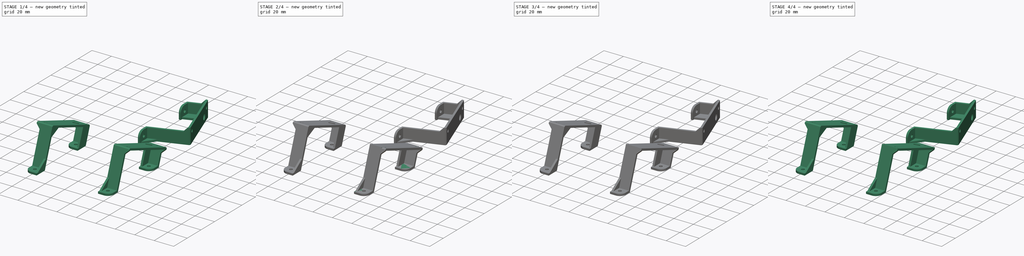
[diagram: build sequence overview — one tinted view per stage of 4, left to right]
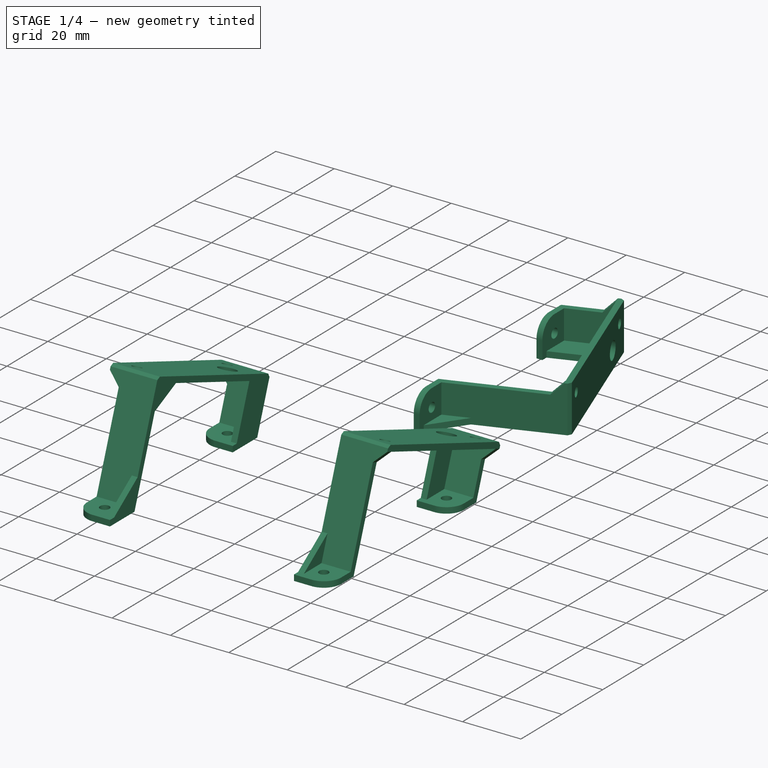
[diagram: stage 1 of 4 — iso view after this stage's code; geometry added in this stage tinted green]
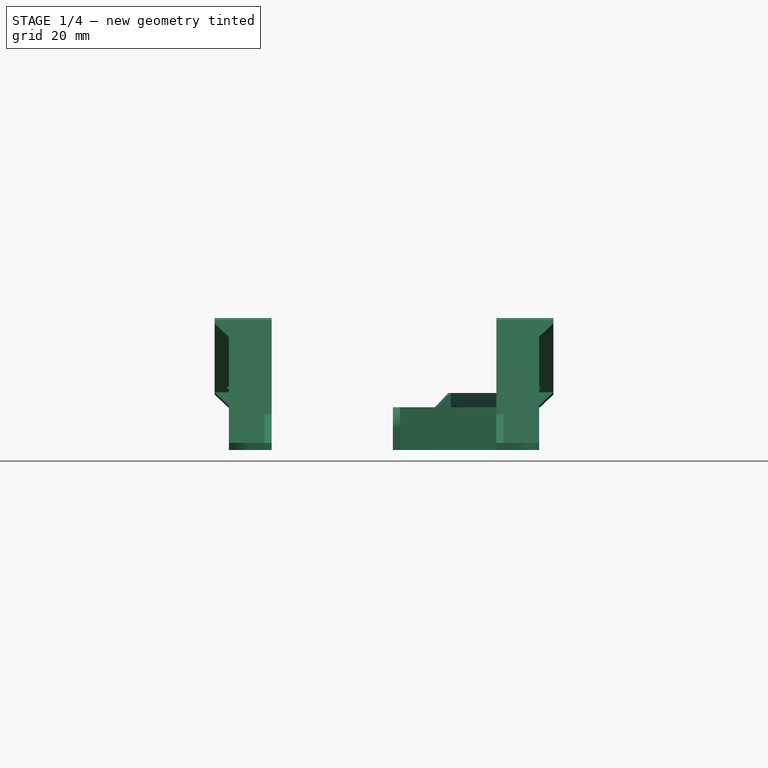
[diagram: stage 1 of 4 — front view after this stage's code; geometry added in this stage tinted green]
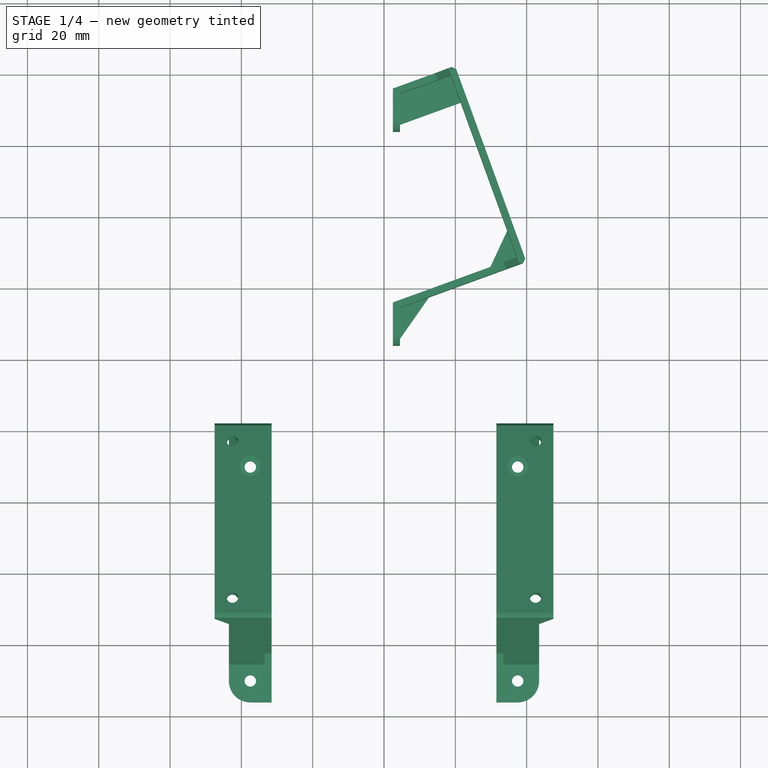
[diagram: stage 1 of 4 — top view after this stage's code; geometry added in this stage tinted green]
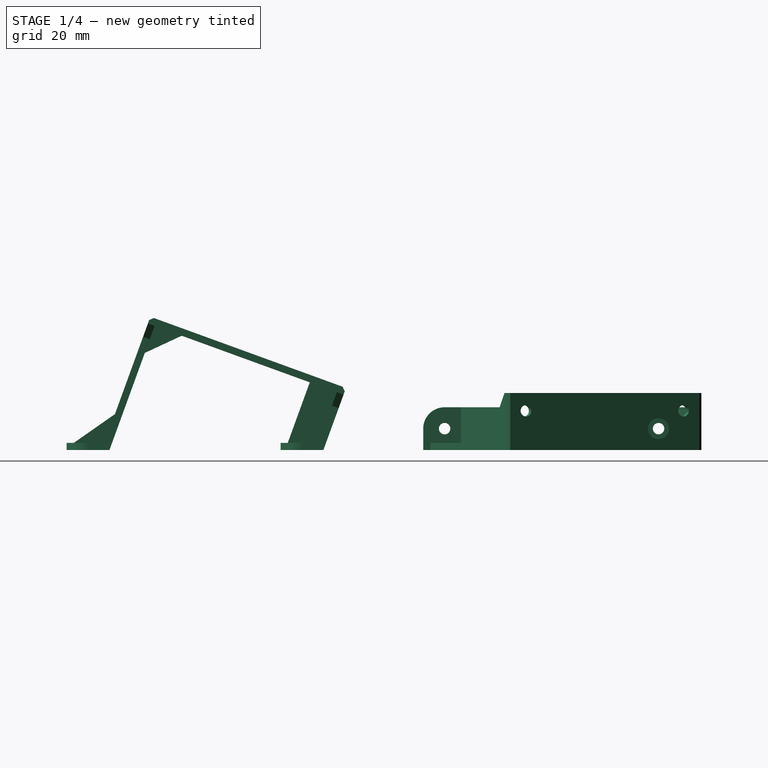
[diagram: stage 1 of 4 — right view after this stage's code; geometry added in this stage tinted green]
FCSTD DOCUMENT  (FreeCAD 0.14R3692 (Git))
Label: Bracket_Keypad
License: CC-BY 3.0
LicenseURL: http://creativecommons.org/licenses/by/3.0/
objects: Sketcher::SketchObject×8, PartDesign::Pad×5, PartDesign::Pocket×3, Part::Feature×3, Part::Mirroring×2, PartDesign::Fillet×1, PartDesign::Mirrored×1, Part::Chamfer×1
note: 32 computed .brp shape members not serialized (recipe doc carries the construction recipe); baked Part::Feature solids carry a one-line shape summary decoded from their .brp

FEATURE [Part::Feature] Pocket003
  shape: bbox 16 x 78.34 x 37.38 mm, 31 faces (baked)
FEATURE [Part::Chamfer] Chamfer
  Base = -> Pocket003
  Edges = 2 edges r=1: [Edge73,Edge95]
FEATURE [Part::Feature] Chamfer001  label="Bracket_Keypad-Left"
  shape: bbox 16 x 78 x 37.04 mm, 33 faces (baked)
FEATURE [Part::Mirroring] Part__Mirroring  label="Bracket_Keypad-Right"
  Base = (0,0,0)
  Normal = (1,0,0)
  Source = -> Chamfer001
FEATURE [Part::Feature] Chamfer001001  label="Bracket_Keypad-Left (for printing)"
  Placement = pos=(-2.5,100,-31.5) rot=(0,-1,0;1.5708rad)
  shape: bbox 37.04 x 78 x 16 mm, 33 faces (baked)
FEATURE [Part::Mirroring] Part__Mirroring001  label="Bracket_Keypad-Right (for printing)"
  Base = (0,0,0)
  Normal = (1,0,0)
  Source = -> Chamfer001001
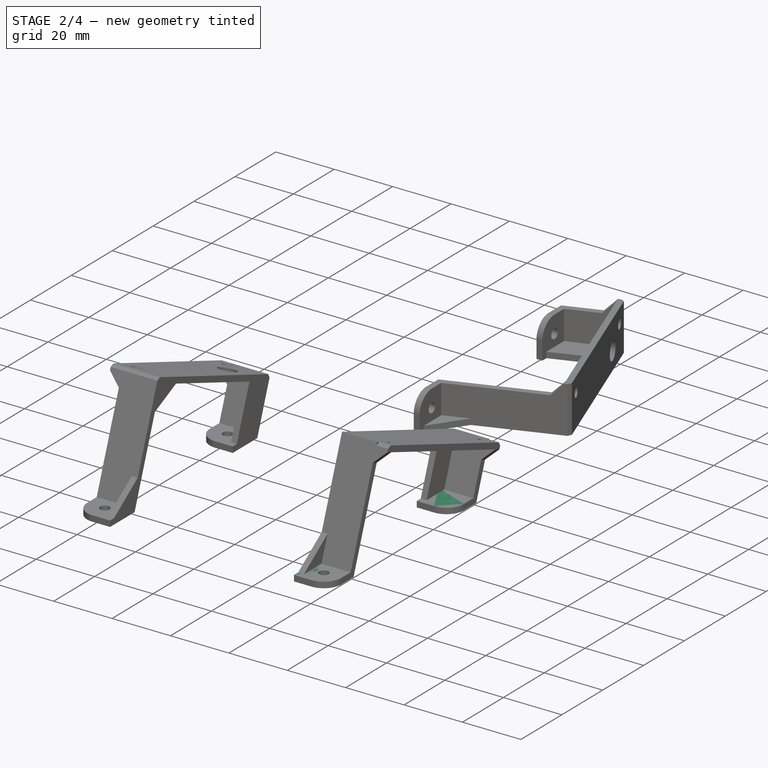
[diagram: stage 2 of 4 — iso view after this stage's code; geometry added in this stage tinted green]
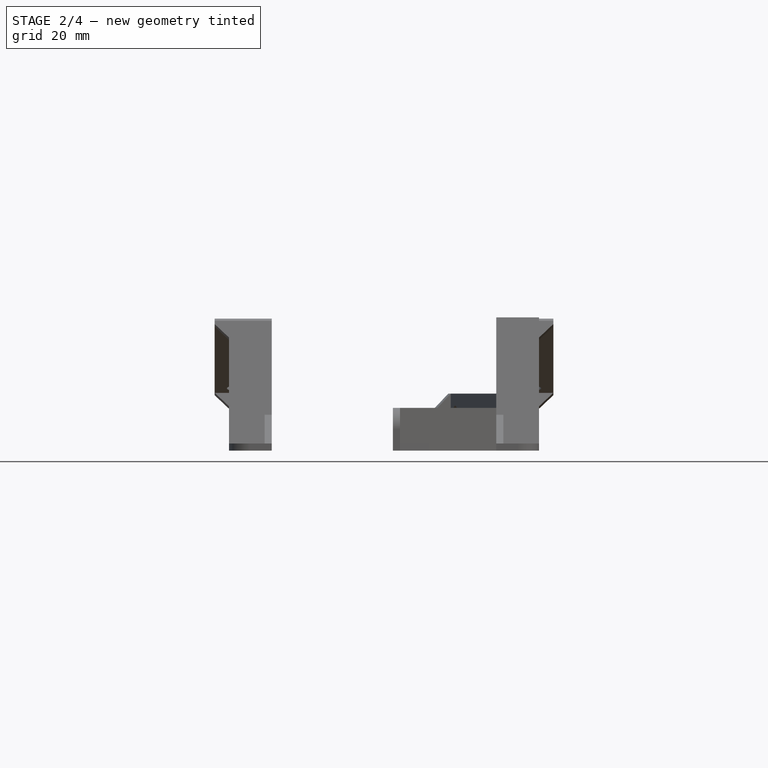
[diagram: stage 2 of 4 — front view after this stage's code; geometry added in this stage tinted green]
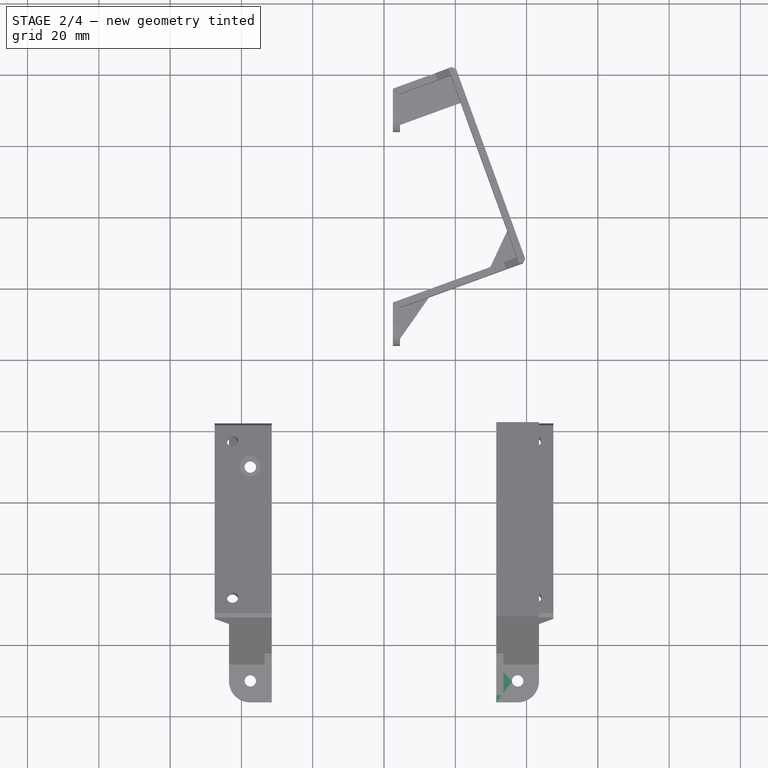
[diagram: stage 2 of 4 — top view after this stage's code; geometry added in this stage tinted green]
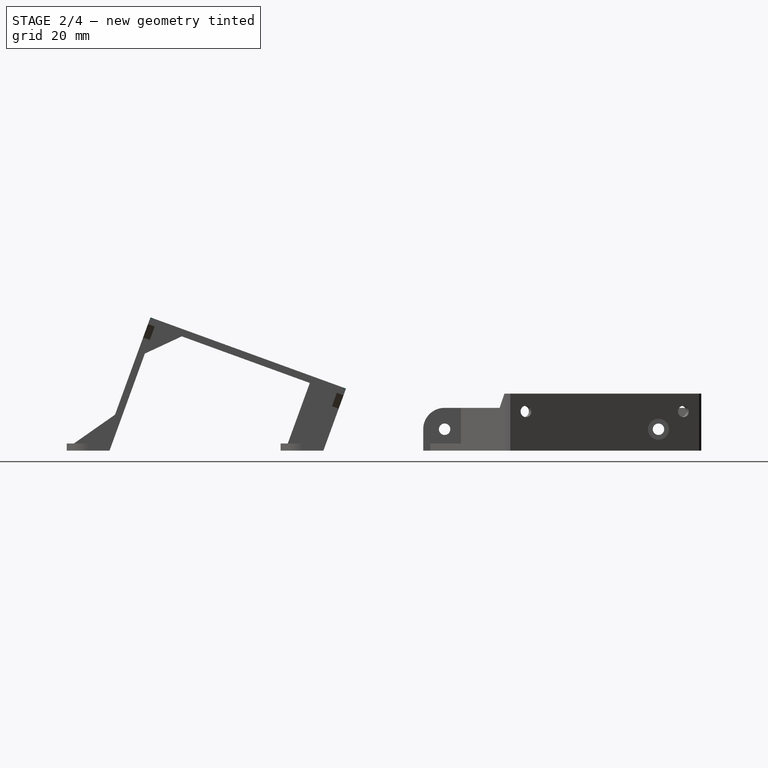
[diagram: stage 2 of 4 — right view after this stage's code; geometry added in this stage tinted green]
FEATURE [Sketcher::SketchObject] Sketch
  Placement = pos=(31.5,0,0) rot=(0.57735,0.57735,0.57735;2.0944rad)
  sketch-geometry (14):
    g0: Circle [constr] CenterX=0 CenterY=-14 CenterZ=0 NormalX=0 NormalY=0 NormalZ=1 Radius=42
    g1: LineSegment StartX=-11.3272 StartY=34.8182 StartZ=0 EndX=39.7747 EndY=16.2186 EndZ=0
    g2: GeomPoint [constr] X=14.3648 Y=25.4671 Z=0
    g3: LineSegment StartX=39.7747 StartY=16.2186 StartZ=0 EndX=34.5996 EndY=2 EndZ=0
    g4: LineSegment StartX=-11.3272 StartY=34.8182 StartZ=0 EndX=-24 EndY=0 EndZ=0
    g5: LineSegment StartX=-24 StartY=0 StartZ=0 EndX=-36 EndY=0 EndZ=0
    g6: LineSegment StartX=-36 StartY=0 StartZ=0 EndX=-36 EndY=2 EndZ=0
    g7: LineSegment StartX=-36 StartY=2 StartZ=0 EndX=-25.4004 EndY=2 EndZ=0
    g8: LineSegment StartX=-25.4004 StartY=2 StartZ=0 EndX=-12.5225 EndY=37.3817 EndZ=0
    g9: LineSegment StartX=-12.5225 StartY=37.3817 StartZ=0 EndX=42.3382 EndY=17.414 EndZ=0
    g10: LineSegment StartX=42.3382 StartY=17.414 StartZ=0 EndX=36 EndY=0 EndZ=0
    g11: LineSegment StartX=36 StartY=0 StartZ=0 EndX=24 EndY=0 EndZ=0
    g12: LineSegment StartX=24 StartY=0 StartZ=0 EndX=24 EndY=2 EndZ=0
    g13: LineSegment StartX=24 StartY=2 StartZ=0 EndX=34.5996 EndY=2 EndZ=0
  constraints (41):
    c: Radius(g0) = 42
    c: PointOnObject(g0,g-2)
    c: PointOnObject(g2,g0)
    c: PointOnObject(g2,g1)
    c: DistanceX(g-1,g4) = -24
    c: Angle(g4) = -1.91986
    c: Coincident(g1,g4)
    c: Coincident(g1,g3)
    c: Coincident(g5,g6)
    c: Coincident(g6,g7)
    c: Coincident(g7,g8)
    c: Coincident(g8,g9)
    c: Coincident(g9,g10)
    c: Coincident(g10,g11)
    c: Coincident(g11,g12)
    c: Coincident(g12,g13)
    c: Horizontal(g5)
    c: Horizontal(g7)
    c: Horizontal(g13)
    c: Horizontal(g11)
    c: Vertical(g6)
    c: Vertical(g12)
    c: Coincident(g5,g4)
    c: Coincident(g13,g3)
    c: Parallel(g3,g10)
    c: Parallel(g4,g8)
    c: Parallel(g9,g1)
    c: DistanceY(g6) = 2
    c: DistanceX(g5) = -12
    c: Equal(g5,g11)
    c: Equal(g6,g12)
    c: Distance(g1,g9) = 2
    c: Distance(g1,g8) = 2
    c: DistanceX(g-1,g11) = 24
    c: DistanceY(g-1,g0) = -14
    c: PointOnObject(g4,g-1)
    c: PointOnObject(g10,g-1)
    c: Distance(g1,g10) = 2
    c: Parallel(g3,g4)
    c: Perpendicular(g1,g4)
    c: Tangent(g0,g1)
FEATURE [PartDesign::Pad] Pad
  Length = 12
  Length2 = 100
  Placement = pos=(31.5,0,0) rot=(0.57735,0.57735,0.57735;2.0944rad)
  Sketch = -> Sketch
  Type = 0
FEATURE [PartDesign::Fillet] Fillet
  Base = -> Pad [Edge31,Edge13]
  Placement = pos=(31.5,0,0) rot=(0.57735,0.57735,0.57735;2.0944rad)
  Radius = 6
FEATURE [Sketcher::SketchObject] Sketch001
  Placement = pos=(31.5,0,2) rot=(0,0,-1;1.5708rad)
  Support = -> Fillet [Face12]
  sketch-geometry (1):
    g0: Circle CenterX=30 CenterY=6 CenterZ=0 NormalX=0 NormalY=0 NormalZ=1 Radius=1.6
  constraints (3):
    c: Radius(g0) = 1.6
    c: DistanceX(g-1,g0) = 30
    c: DistanceY(g-1,g0) = 6
FEATURE [PartDesign::Pocket] Pocket
  Length = 2
  Placement = pos=(31.5,0,0) rot=(0.57735,0.57735,0.57735;2.0944rad)
  Sketch = -> Sketch001
  Type = 0
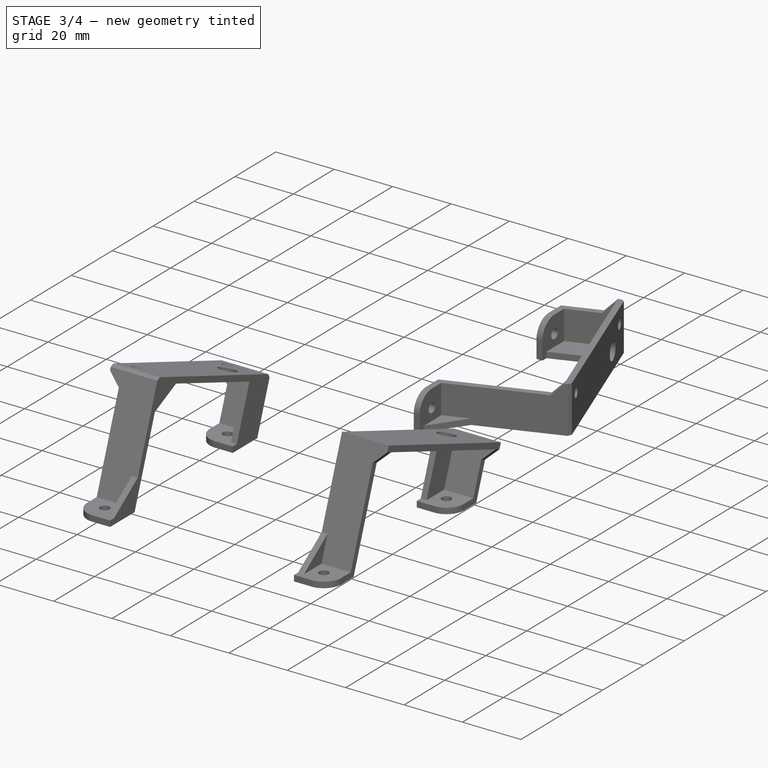
[diagram: stage 3 of 4 — iso view after this stage's code; geometry added in this stage tinted green]
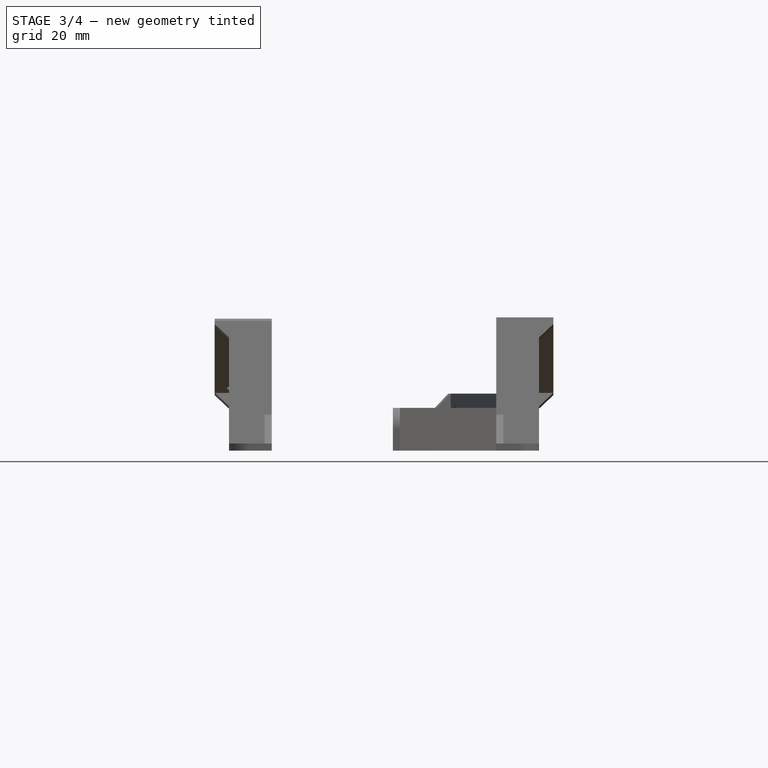
[diagram: stage 3 of 4 — front view after this stage's code; geometry added in this stage tinted green]
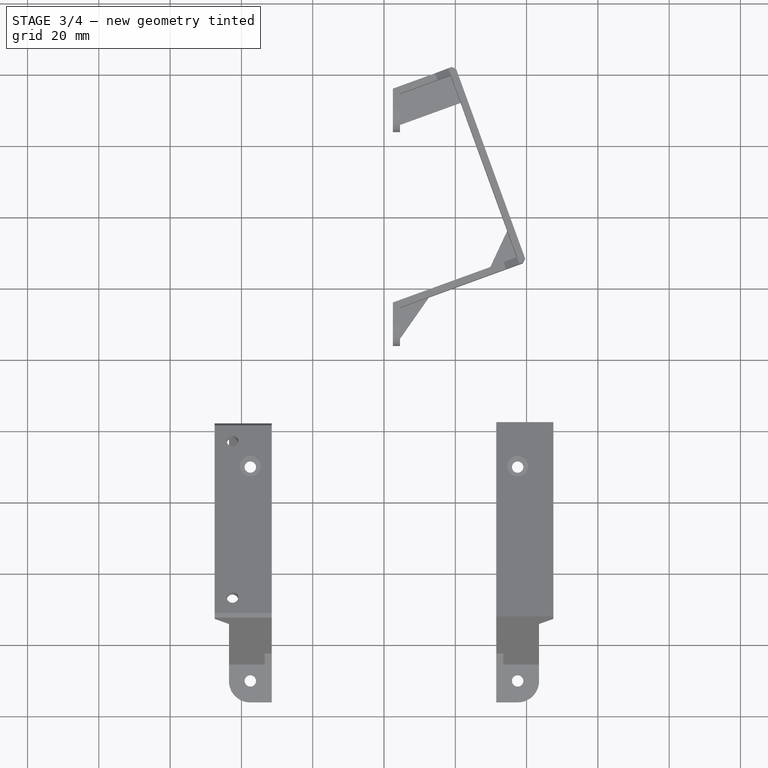
[diagram: stage 3 of 4 — top view after this stage's code; geometry added in this stage tinted green]
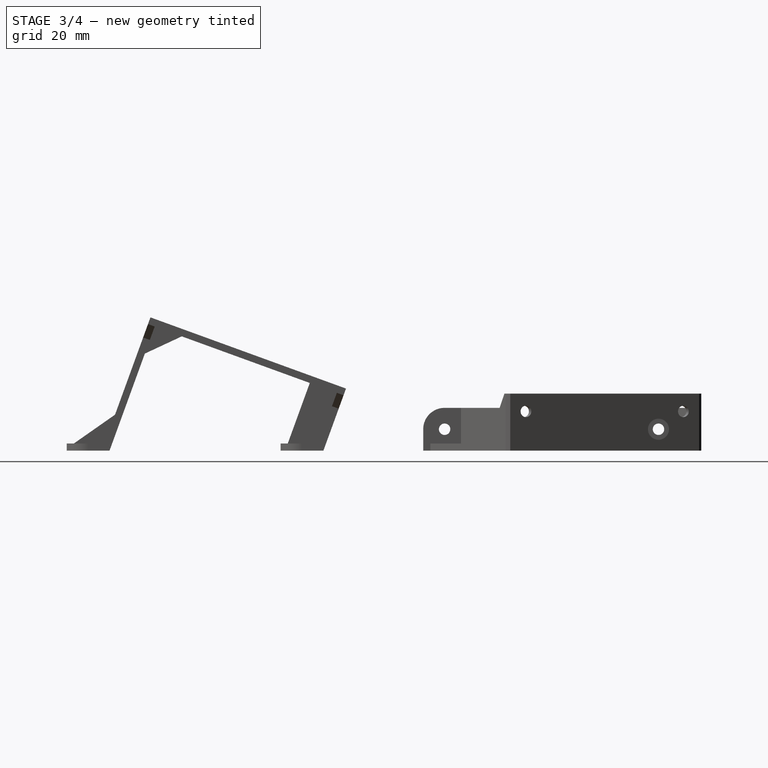
[diagram: stage 3 of 4 — right view after this stage's code; geometry added in this stage tinted green]
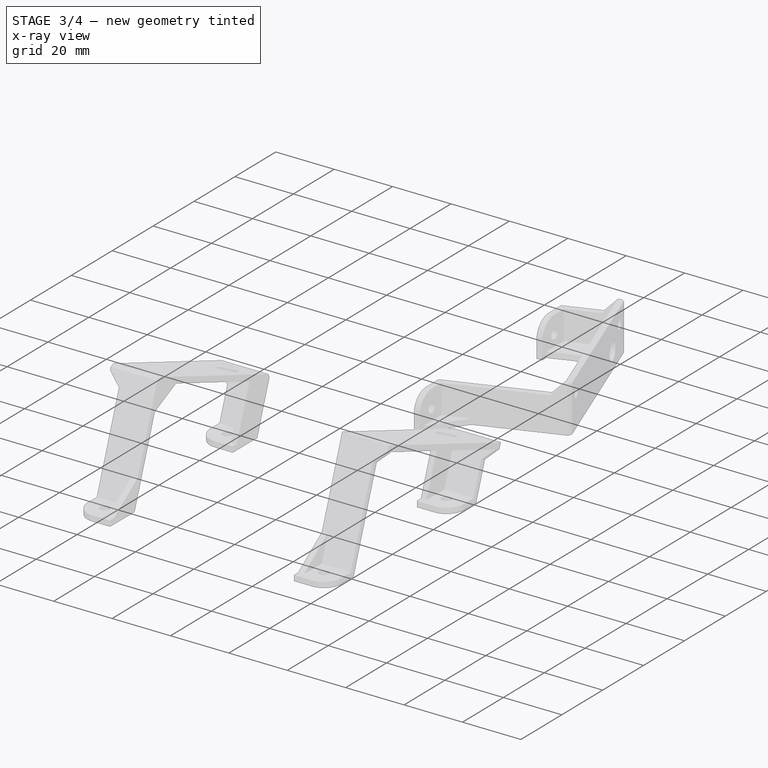
[diagram: stage 3 of 4 — x-ray composite at the iso view; earlier geometry ghosted, this stage's added geometry solid]
FEATURE [PartDesign::Mirrored] Mirrored
  MirrorPlane = -> Sketch001 [V_Axis]
  Originals = -> [Pocket]
  Placement = pos=(31.5,0,0) rot=(0.57735,0.57735,0.57735;2.0944rad)
FEATURE [Sketcher::SketchObject] Sketch003
  ExternalGeometry = -> [Mirrored]
  Placement = pos=(31.5,0,0) rot=(0.57735,0.57735,-0.57735;4.18879rad)
  Support = -> Mirrored [Face4]
  sketch-geometry (10):
    g0: LineSegment StartX=-34 StartY=-2 StartZ=0 EndX=-22.4592 EndY=-10.081 EndZ=0
    g1: LineSegment StartX=-22.4592 StartY=-10.081 StartZ=0 EndX=-25.4004 EndY=-2 EndZ=0
    g2: LineSegment StartX=-25.4004 StartY=-2 StartZ=0 EndX=-34 EndY=-2 EndZ=0
    g3: LineSegment StartX=26 StartY=-2 StartZ=0 EndX=32.1811 EndY=-18.9825 EndZ=0
    g4: LineSegment StartX=32.1811 StartY=-18.9825 StartZ=0 EndX=39.7747 EndY=-16.2186 EndZ=0
    g5: LineSegment StartX=39.7747 StartY=-16.2186 StartZ=0 EndX=34.5996 EndY=-2 EndZ=0
    g6: LineSegment StartX=34.5996 StartY=-2 StartZ=0 EndX=26 EndY=-2 EndZ=0
    g7: LineSegment StartX=-14.0911 StartY=-27.2246 StartZ=0 EndX=-11.3272 EndY=-34.8182 EndZ=0
    g8: LineSegment StartX=-11.3272 StartY=-34.8182 StartZ=0 EndX=-3.73358 EndY=-32.0544 EndZ=0
    g9: LineSegment StartX=-3.73358 StartY=-32.0544 StartZ=0 EndX=-14.0911 EndY=-27.2246 EndZ=0
  constraints (26):
    c: Coincident(g0,g2)
    c: Coincident(g1,g2)
    c: Coincident(g0,g1)
    c: Coincident(g7,g9)
    c: Coincident(g7,g8)
    c: Coincident(g8,g9)
    c: Coincident(g4,g5)
    c: Coincident(g5,g6)
    c: Coincident(g3,g6)
    c: Coincident(g3,g4)
    c: Coincident(g-4,g5)
    c: Coincident(g4,g-3)
    c: PointOnObject(g3,g-4)
    c: PointOnObject(g3,g-3)
    c: Coincident(g7,g-3)
    c: PointOnObject(g8,g-3)
    c: PointOnObject(g0,g-5)
    c: Coincident(g1,g-5)
    c: DistanceX(g-5,g0) = 2
    c: Equal(g2,g1)
    c: Equal(g1,g6)
    c: Parallel(g1,g3)
    c: Parallel(g3,g5)
    c: Parallel(g5,g7)
    c: Equal(g4,g8)
    c: Equal(g7,g8)
FEATURE [PartDesign::Pad] Pad001
  Length = 2
  Length2 = 100
  Placement = pos=(31.5,0,0) rot=(0.57735,0.57735,0.57735;2.0944rad)
  Reversed = true
  Sketch = -> Sketch003
  Type = 0
FEATURE [Sketcher::SketchObject] Sketch004
  Placement = pos=(31.5,0,2) rot=(0,0,-1;1.5708rad)
  Support = -> Pad001 [Face5]
  sketch-geometry (1):
    g0: Circle CenterX=-30 CenterY=6 CenterZ=0 NormalX=0 NormalY=0 NormalZ=1 Radius=2.95
  constraints (3):
    c: Radius(g0) = 2.95
    c: DistanceY(g-1,g0) = 6
    c: DistanceX(g-1,g0) = -30
FEATURE [PartDesign::Pocket] Pocket001
  Length = 5
  Placement = pos=(31.5,0,0) rot=(0.57735,0.57735,0.57735;2.0944rad)
  Reversed = true
  Sketch = -> Sketch004
  Type = 1
FEATURE [Sketcher::SketchObject] Sketch002
  ExternalGeometry = -> [Pocket001]
  Placement = pos=(43.5,0,0) rot=(0.57735,0.57735,0.57735;2.0944rad)
  Support = -> Pocket001 [Face7]
  sketch-geometry (4):
    g0: LineSegment StartX=-12.5225 StartY=37.3817 StartZ=0 EndX=42.3382 EndY=17.414 EndZ=0
    g1: LineSegment StartX=42.3382 StartY=17.414 StartZ=0 EndX=41.6541 EndY=15.5346 EndZ=0
    g2: LineSegment StartX=41.6541 StartY=15.5346 StartZ=0 EndX=-13.2066 EndY=35.5023 EndZ=0
    g3: LineSegment StartX=-13.2066 StartY=35.5023 StartZ=0 EndX=-12.5225 EndY=37.3817 EndZ=0
  constraints (10):
    c: Coincident(g0,g1)
    c: Coincident(g1,g2)
    c: Coincident(g2,g3)
    c: Coincident(g3,g0)
    c: Distance(g3) = 2
    c: Parallel(g2,g0)
    c: Coincident(g0,g-3)
    c: Coincident(g0,g-3)
    c: Perpendicular(g0,g1)
    c: Parallel(g1,g3)
FEATURE [PartDesign::Pad] Pad002
  Length = 4
  Length2 = 100
  Placement = pos=(31.5,0,0) rot=(0.57735,0.57735,0.57735;2.0944rad)
  Sketch = -> Sketch002
  Type = 0
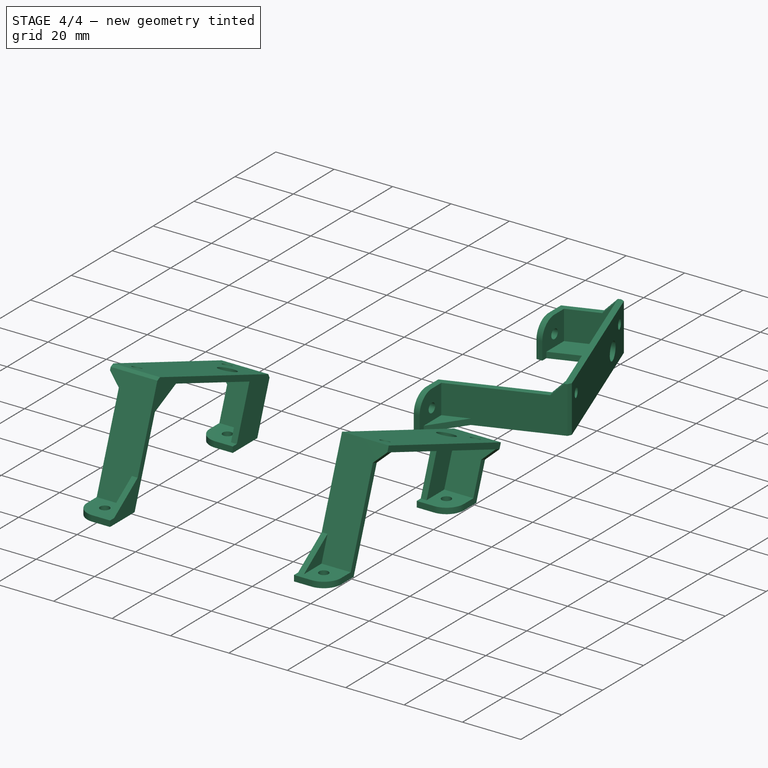
[diagram: stage 4 of 4 — iso view after this stage's code; geometry added in this stage tinted green]
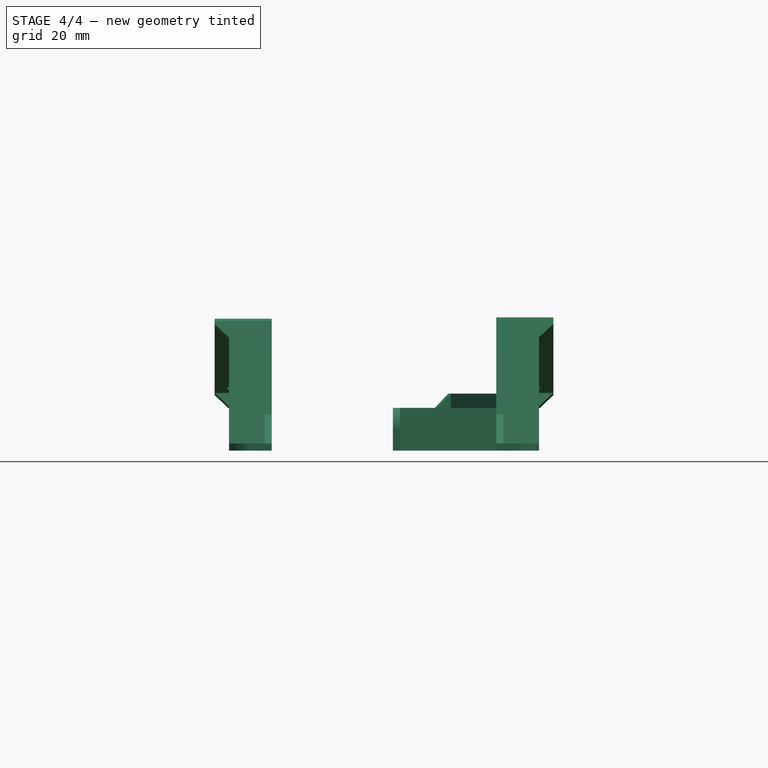
[diagram: stage 4 of 4 — front view after this stage's code; geometry added in this stage tinted green]
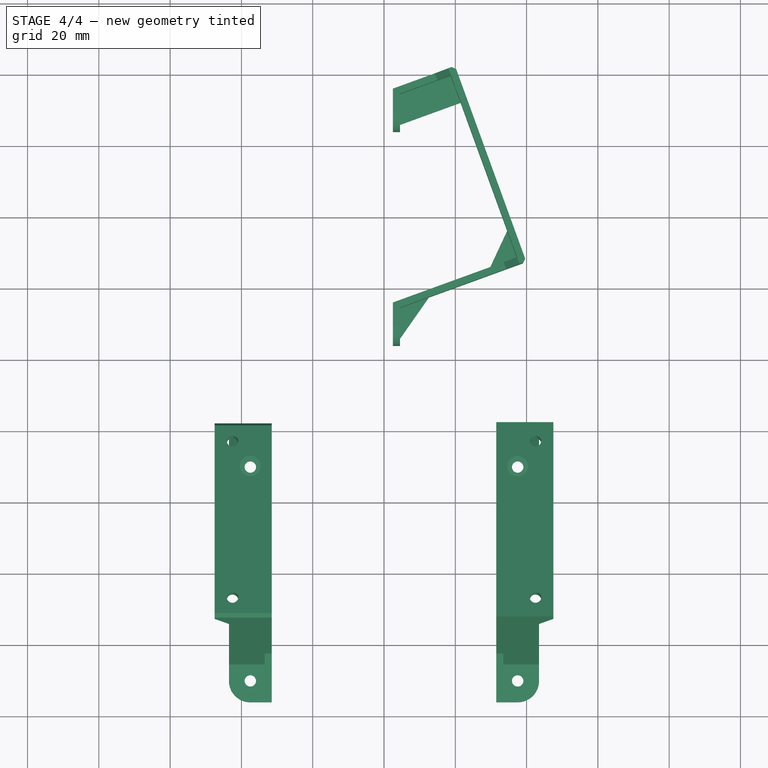
[diagram: stage 4 of 4 — top view after this stage's code; geometry added in this stage tinted green]
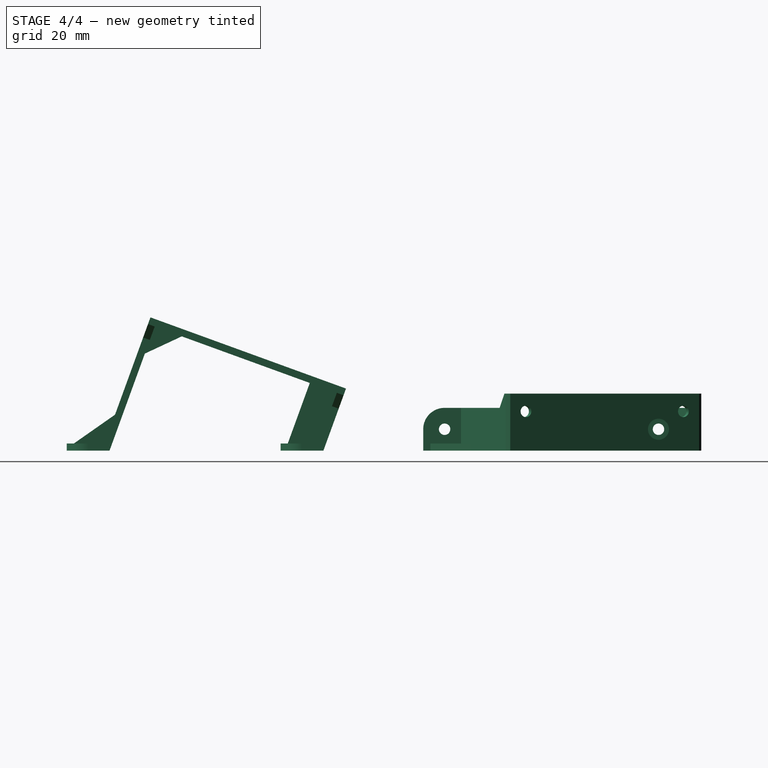
[diagram: stage 4 of 4 — right view after this stage's code; geometry added in this stage tinted green]
FEATURE [Sketcher::SketchObject] Sketch005
  ExternalGeometry = -> [Pad002]
  Placement = pos=(31.5,31.7888,-11.5702) rot=(0.633687,0.633687,0.443713;3.97682rad)
  Support = -> Pad002 [Face8]
  sketch-geometry (3):
    g0: LineSegment StartX=24.8443 StartY=12 StartZ=0 EndX=28.8443 EndY=16 EndZ=0
    g1: LineSegment StartX=28.8443 StartY=16 StartZ=0 EndX=28.8443 EndY=12 EndZ=0
    g2: LineSegment StartX=28.8443 StartY=12 StartZ=0 EndX=24.8443 EndY=12 EndZ=0
  constraints (8):
    c: Coincident(g0,g2)
    c: Coincident(g0,g1)
    c: Coincident(g1,g2)
    c: Horizontal(g2)
    c: Vertical(g1)
    c: Equal(g2,g1)
    c: Coincident(g1,g-3)
    c: DistanceY(g1) = -4
FEATURE [PartDesign::Pad] Pad003
  Length = 2
  Length2 = 100
  Placement = pos=(31.5,0,0) rot=(0.57735,0.57735,0.57735;2.0944rad)
  Reversed = true
  Sketch = -> Sketch005
  Type = 0
FEATURE [Sketcher::SketchObject] Sketch006
  ExternalGeometry = -> [Pad003]
  Placement = pos=(31.5,-23.0719,8.39749) rot=(0.497543,0.497543,-0.710565;1.90603rad)
  Support = -> Pad003 [Face17]
  sketch-geometry (3):
    g0: LineSegment StartX=-28.8443 StartY=16 StartZ=0 EndX=-28.8443 EndY=12 EndZ=0
    g1: LineSegment StartX=-28.8443 StartY=12 StartZ=0 EndX=-24.8443 EndY=12 EndZ=0
    g2: LineSegment StartX=-24.8443 StartY=12 StartZ=0 EndX=-28.8443 EndY=16 EndZ=0
  constraints (8):
    c: Coincident(g0,g2)
    c: Coincident(g0,g1)
    c: Coincident(g1,g2)
    c: Vertical(g0)
    c: Horizontal(g1)
    c: Equal(g0,g1)
    c: DistanceY(g0) = -4
    c: Coincident(g0,g-3)
FEATURE [PartDesign::Pad] Pad004
  Length = 2
  Length2 = 100
  Placement = pos=(31.5,0,0) rot=(0.57735,0.57735,0.57735;2.0944rad)
  Reversed = true
  Sketch = -> Sketch006
  Type = 0
FEATURE [Sketcher::SketchObject] Sketch007
  ExternalGeometry = -> [Pad004]
  Placement = pos=(31.5,10.5494,28.9842) rot=(-0.171088,-0.171088,-0.970288;1.60095rad)
  Support = -> Pad004 [Face18]
  sketch-geometry (3):
    g0: LineSegment [constr] StartX=-4.63816 StartY=-31.5 StartZ=0 EndX=-4.63816 EndY=16 EndZ=0
    g1: Circle CenterX=-28.1382 CenterY=11 CenterZ=0 NormalX=0 NormalY=0 NormalZ=1 Radius=1.6
    g2: Circle CenterX=18.8618 CenterY=11 CenterZ=0 NormalX=0 NormalY=0 NormalZ=1 Radius=1.6
  constraints (9):
    c: Vertical(g0)
    c: Symmetric(g-3,g-3,g0)
    c: DistanceY(g-1,g0) = 16
    c: DistanceY(g0) = 47.5
    c: Radius(g1) = 1.6
    c: DistanceX(g1,g0) = 23.5
    c: DistanceY(g1,g0) = -42.5
    c: Symmetric(g2,g1,g0)
    c: Equal(g2,g1)
FEATURE [PartDesign::Pocket] Pocket002
  Length = 2
  Placement = pos=(31.5,0,0) rot=(0.57735,0.57735,0.57735;2.0944rad)
  Sketch = -> Sketch007
  Type = 0
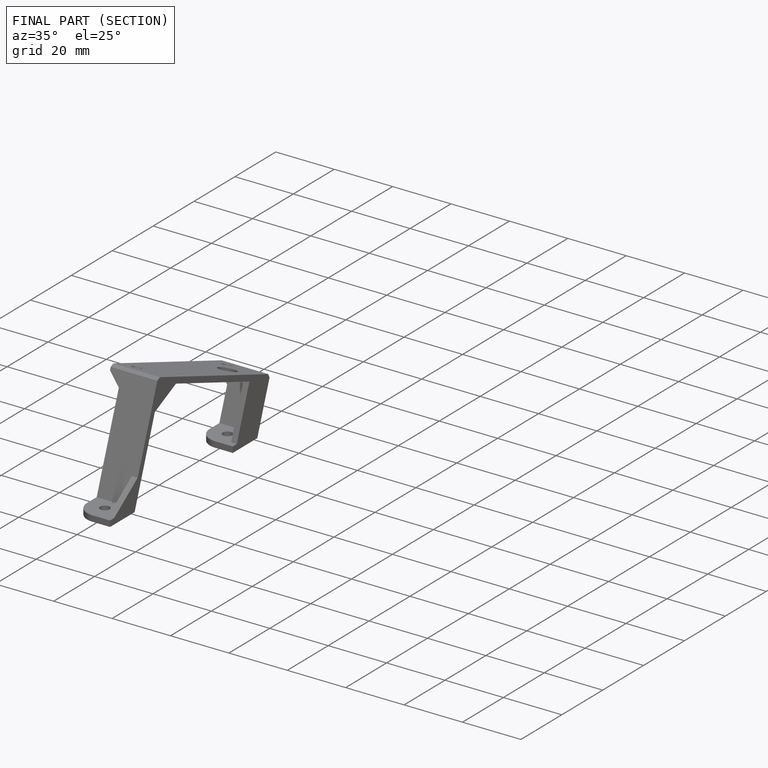
[diagram: finished part — half-section view (interior)]
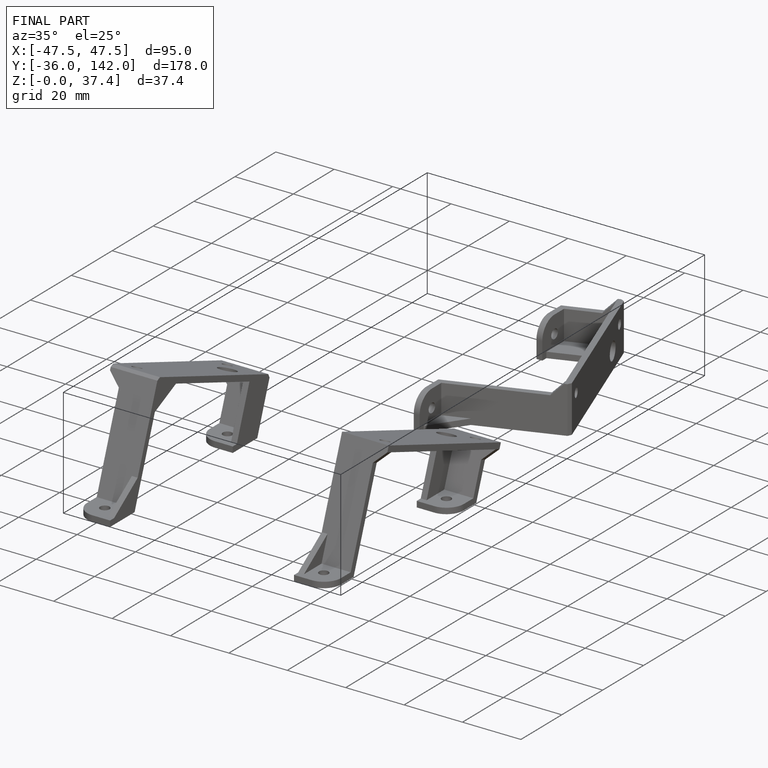
[diagram: finished part — iso view with bounding-box wireframe]
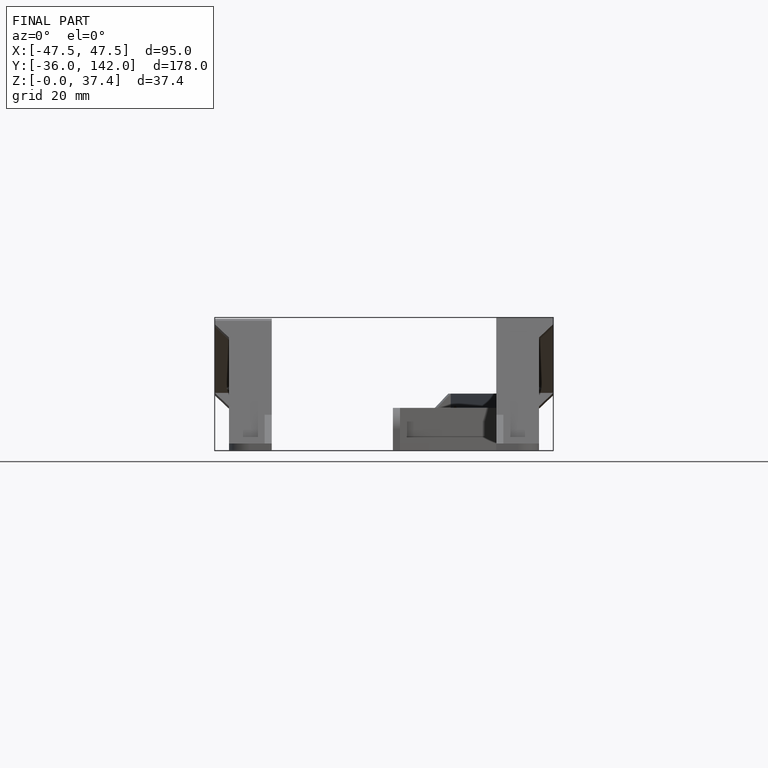
[diagram: finished part — front view with bounding-box wireframe]
